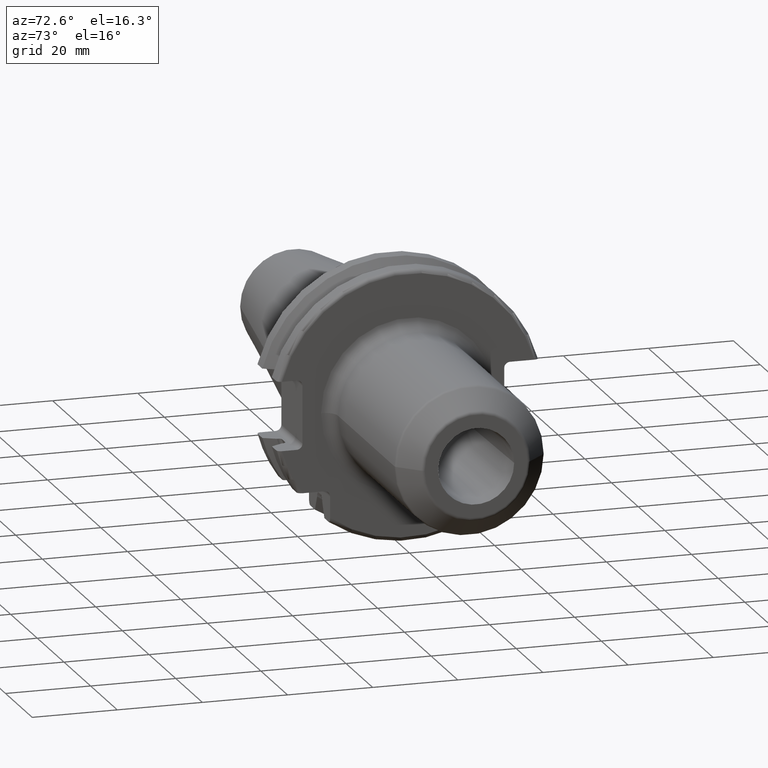
[diagram: clean part render]
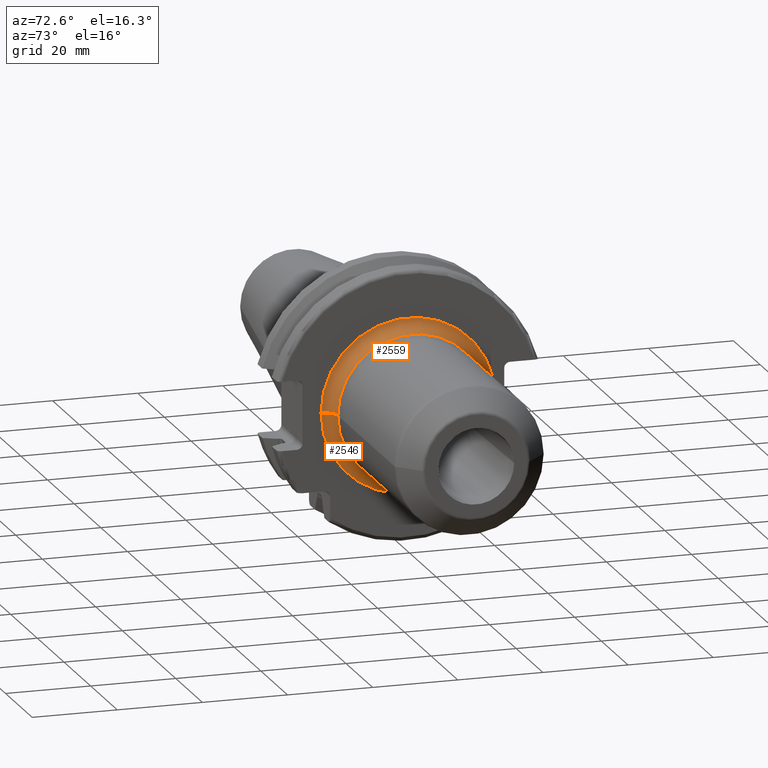
[diagram: same view with one multi-face feature highlighted, each face labeled with its STEP entity id]
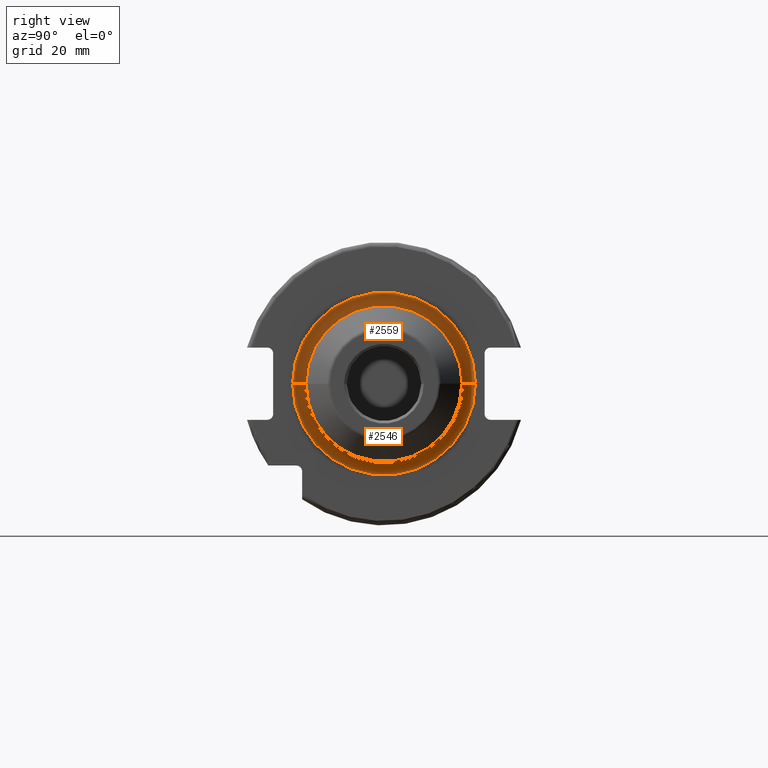
[diagram: same view with one multi-face feature highlighted, each face labeled with its STEP entity id]
A machine part, auxiliary view. The highlighted faces form ONE feature: a constant-radius fillet chain: 2 tangent blend faces with common blend radius 3 mm. The faces share edges in the B-rep.
A second angle (right view) of the same feature is appended — it is thin or edge-on in the first view.
Their STEP definitions:
[1] entity #2559 (Torus):
#242=CARTESIAN_POINT('',(1.905E1,0.E0,0.E0));
#243=DIRECTION('',(1.E0,0.E0,0.E0));
#244=DIRECTION('',(0.E0,1.E0,0.E0));
#245=AXIS2_PLACEMENT_3D('',#242,#243,#244);
#938=CARTESIAN_POINT('',(2.205E1,-2.05E1,7.643885524544E-13));
#939=DIRECTION('',(0.E0,-3.728614639265E-14,-1.E0));
#940=DIRECTION('',(-1.E0,4.855375361027E-14,0.E0));
#941=AXIS2_PLACEMENT_3D('',#938,#939,#940);
#943=CARTESIAN_POINT('',(2.205E1,2.05E1,-7.668032875330E-13));
#944=DIRECTION('',(0.E0,3.740410758901E-14,1.E0));
#945=DIRECTION('',(-1.E0,-4.855375361027E-14,0.E0));
#946=AXIS2_PLACEMENT_3D('',#943,#944,#945);
#953=CARTESIAN_POINT('',(2.205E1,0.E0,0.E0));
#954=DIRECTION('',(1.E0,0.E0,0.E0));
#955=DIRECTION('',(0.E0,1.E0,0.E0));
#956=AXIS2_PLACEMENT_3D('',#953,#954,#955);
#1548=CARTESIAN_POINT('',(1.905E1,-2.05E1,0.E0));
#1549=CARTESIAN_POINT('',(1.905E1,2.05E1,0.E0));
#1550=VERTEX_POINT('',#1548);
#1551=VERTEX_POINT('',#1549);
#1552=CARTESIAN_POINT('',(2.205E1,-1.75E1,0.E0));
#1553=CARTESIAN_POINT('',(2.205E1,1.75E1,0.E0));
#1554=VERTEX_POINT('',#1552);
#1555=VERTEX_POINT('',#1553);
#2547=CARTESIAN_POINT('',(2.205E1,0.E0,0.E0));
#2548=DIRECTION('',(1.E0,0.E0,0.E0));
#2549=DIRECTION('',(0.E0,9.999613968234E-1,-8.786629791456E-3));
#2550=AXIS2_PLACEMENT_3D('',#2547,#2548,#2549);
#2551=TOROIDAL_SURFACE('',#2550,2.05E1,3.E0);
#2552=ORIENTED_EDGE('',*,*,#1882,.F.);
#2553=ORIENTED_EDGE('',*,*,#2542,.T.);
#2555=ORIENTED_EDGE('',*,*,#2554,.T.);
#2556=ORIENTED_EDGE('',*,*,#2538,.F.);
#2557=EDGE_LOOP('',(#2552,#2553,#2555,#2556));
#2558=FACE_OUTER_BOUND('',#2557,.F.);
#2559=ADVANCED_FACE('',(#2558),#2551,.F.);
#246=CIRCLE('',#245,2.05E1);
#942=CIRCLE('',#941,3.E0);
#947=CIRCLE('',#946,3.E0);
#957=CIRCLE('',#956,1.75E1);
#1882=EDGE_CURVE('',#1551,#1550,#246,.T.);
#2538=EDGE_CURVE('',#1550,#1554,#942,.T.);
#2542=EDGE_CURVE('',#1551,#1555,#947,.T.);
#2554=EDGE_CURVE('',#1555,#1554,#957,.T.);
[2] entity #2546 (Torus):
#237=CARTESIAN_POINT('',(1.905E1,0.E0,0.E0));
#238=DIRECTION('',(1.E0,0.E0,0.E0));
#239=DIRECTION('',(0.E0,-1.E0,0.E0));
#240=AXIS2_PLACEMENT_3D('',#237,#238,#239);
#938=CARTESIAN_POINT('',(2.205E1,-2.05E1,7.643885524544E-13));
#939=DIRECTION('',(0.E0,-3.728614639265E-14,-1.E0));
#940=DIRECTION('',(-1.E0,4.855375361027E-14,0.E0));
#941=AXIS2_PLACEMENT_3D('',#938,#939,#940);
#943=CARTESIAN_POINT('',(2.205E1,2.05E1,-7.668032875330E-13));
#944=DIRECTION('',(0.E0,3.740410758901E-14,1.E0));
#945=DIRECTION('',(-1.E0,-4.855375361027E-14,0.E0));
#946=AXIS2_PLACEMENT_3D('',#943,#944,#945);
#977=CARTESIAN_POINT('',(2.205E1,0.E0,0.E0));
#978=DIRECTION('',(1.E0,0.E0,0.E0));
#979=DIRECTION('',(0.E0,-1.E0,0.E0));
#980=AXIS2_PLACEMENT_3D('',#977,#978,#979);
#1548=CARTESIAN_POINT('',(1.905E1,-2.05E1,0.E0));
#1549=CARTESIAN_POINT('',(1.905E1,2.05E1,0.E0));
#1550=VERTEX_POINT('',#1548);
#1551=VERTEX_POINT('',#1549);
#1552=CARTESIAN_POINT('',(2.205E1,-1.75E1,0.E0));
#1553=CARTESIAN_POINT('',(2.205E1,1.75E1,0.E0));
#1554=VERTEX_POINT('',#1552);
#1555=VERTEX_POINT('',#1553);
#2532=CARTESIAN_POINT('',(2.205E1,0.E0,0.E0));
#2533=DIRECTION('',(1.E0,0.E0,0.E0));
#2534=DIRECTION('',(0.E0,-9.999613968234E-1,8.786629791456E-3));
#2535=AXIS2_PLACEMENT_3D('',#2532,#2533,#2534);
#2536=TOROIDAL_SURFACE('',#2535,2.05E1,3.E0);
#2537=ORIENTED_EDGE('',*,*,#1880,.F.);
#2539=ORIENTED_EDGE('',*,*,#2538,.T.);
#2541=ORIENTED_EDGE('',*,*,#2540,.T.);
#2543=ORIENTED_EDGE('',*,*,#2542,.F.);
#2544=EDGE_LOOP('',(#2537,#2539,#2541,#2543));
#2545=FACE_OUTER_BOUND('',#2544,.F.);
#2546=ADVANCED_FACE('',(#2545),#2536,.F.);
#241=CIRCLE('',#240,2.05E1);
#942=CIRCLE('',#941,3.E0);
#947=CIRCLE('',#946,3.E0);
#981=CIRCLE('',#980,1.75E1);
#1880=EDGE_CURVE('',#1550,#1551,#241,.T.);
#2538=EDGE_CURVE('',#1550,#1554,#942,.T.);
#2540=EDGE_CURVE('',#1554,#1555,#981,.T.);
#2542=EDGE_CURVE('',#1551,#1555,#947,.T.);